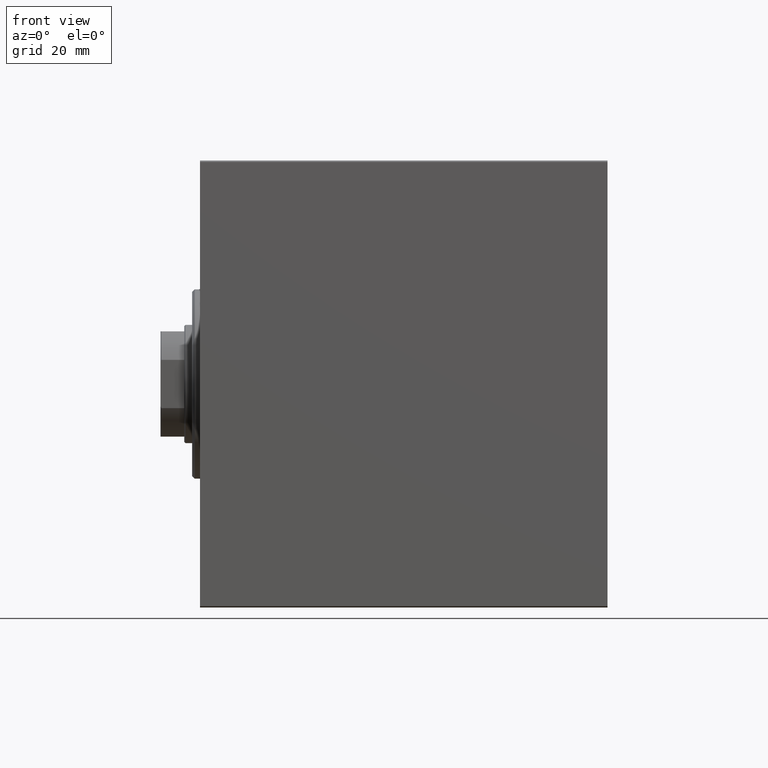
[diagram: clean part render]
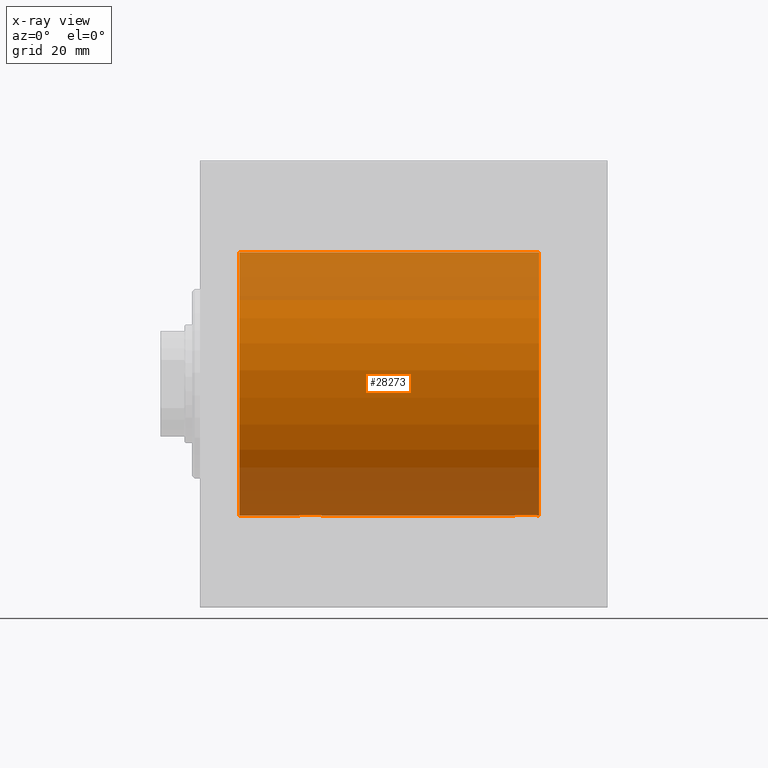
[diagram: x-ray — body ghosted, one internal face saturated and labeled with its STEP entity id]
A machine part, front view, then the same camera in x-ray: the body is ghosted and one INTERNAL B-rep face — a face not visible from any outside direction — is saturated and labeled: STEP entity #28273.
In plain terms, the highlighted cylindrical surface (partial cylindrical patch) has radius 50 mm, axis along (-1, -0, -0).
Its self-contained STEP definition (entity closure, byte-faithful):
#395 = B_SPLINE_CURVE_WITH_KNOTS ( 'NONE', 3,
 ( #21596, #35323, #42060, #21148, #22036, #31279, #18000, #14175, #700, #21811, #11024, #4507, #1354, #28349, #17548, #31724, #1134, #18216, #38690, #31503, #472, #35106, #24973, #25406, #15062, #14401, #41837, #42283, #42505, #11247, #24745, #31946, #7437, #8321 ),
 .UNSPECIFIED., .F., .F.,
 ( 4, 2, 2, 2, 2, 2, 2, 2, 2, 2, 2, 2, 2, 2, 2, 2, 4 ),
 ( 0.01329343152928756308, 0.01412407817529634686, 0.01495472482130513064, 0.01578537146731391269, 0.01661601811332269821, 0.01744666475933148025, 0.01827731140534026577, 0.01910795805134904782, 0.01993860469735782986, 0.02076925134336661538, 0.02159989798937540090, 0.02243054463538418294, 0.02326119128139296499, 0.02409183792740175051, 0.02492248457341053255, 0.02575313121941931460, 0.02658377786542810012 ),
 .UNSPECIFIED. ) ;
#472 = CARTESIAN_POINT ( 'NONE',  ( 40.63289352445426772, -4.033756670430848068, -49.83713703490974467 ) ) ;
#700 = CARTESIAN_POINT ( 'NONE',  ( 45.20303561951990901, -2.807099414226270184, -49.92152599098507437 ) ) ;
#987 = CARTESIAN_POINT ( 'NONE',  ( 120.1816075101212675, -1.886522330773437339, -49.96505190380065642 ) ) ;
#1134 = CARTESIAN_POINT ( 'NONE',  ( 42.28395287026698668, -4.249777379711400904, -49.81906655360197789 ) ) ;
#1202 = CARTESIAN_POINT ( 'NONE',  ( 125.1032329603421545, -4.113647494206490229, -49.83052139214891696 ) ) ;
#1277 = VERTEX_POINT ( 'NONE', #26521 ) ;
#1354 = CARTESIAN_POINT ( 'NONE',  ( 43.88744739392799943, -3.818052230167712668, -49.85412671291930309 ) ) ;
#1408 = VERTEX_POINT ( 'NONE', #11805 ) ;
#1915 = DIRECTION ( 'NONE',  ( -1.000000000000000000, -0.000000000000000000, -0.000000000000000000 ) ) ;
#2366 = VECTOR ( 'NONE', #1915, 1000.000000000000000 ) ;
#3307 = VECTOR ( 'NONE', #18392, 1000.000000000000000 ) ;
#3689 = CARTESIAN_POINT ( 'NONE',  ( 127.6893715567938585, -2.128188802142362945, -49.95522967821975158 ) ) ;
#3780 = ORIENTED_EDGE ( 'NONE', *, *, #25476, .F. ) ;
#4319 = VERTEX_POINT ( 'NONE', #17542 ) ;
#4363 = CARTESIAN_POINT ( 'NONE',  ( 125.3733343657903418, -4.031616700143195509, -49.83731072121799599 ) ) ;
#4507 = CARTESIAN_POINT ( 'NONE',  ( 44.13136399446156588, -3.687400765141522818, -49.86408552998298660 ) ) ;
#5023 = CARTESIAN_POINT ( 'NONE',  ( 124.2839528702669725, -4.249777379711414227, -49.81906655360197789 ) ) ;
#7212 = LINE ( 'NONE', #17536, #10577 ) ;
#7246 = ORIENTED_EDGE ( 'NONE', *, *, #41020, .F. ) ;
#7291 = CARTESIAN_POINT ( 'NONE',  ( 127.2030356195199232, -2.807099414226285727, -49.92152599098507437 ) ) ;
#7437 = CARTESIAN_POINT ( 'NONE',  ( 37.75000000000001421, -0.2808785465865695774, -50.00000000000001421 ) ) ;
#8029 = ORIENTED_EDGE ( 'NONE', *, *, #9341, .T. ) ;
#8170 = CARTESIAN_POINT ( 'NONE',  ( 122.9026238212096303, -4.115209769591122502, -49.83039196709102470 ) ) ;
#8321 = CARTESIAN_POINT ( 'NONE',  ( 37.75000000000000711, -7.073857814331912646E-15, -50.00000000000000000 ) ) ;
#8488 = CARTESIAN_POINT ( 'NONE',  ( 129.0000000000000000, 0.000000000000000000, 0.000000000000000000 ) ) ;
#8792 = ORIENTED_EDGE ( 'NONE', *, *, #25827, .T. ) ;
#9341 = EDGE_CURVE ( 'NONE', #34901, #28540, #32504, .T. ) ;
#9998 = CARTESIAN_POINT ( 'NONE',  ( 128.2231075279900381, -0.5531336717328986241, -49.99769193709643389 ) ) ;
#10255 = CARTESIAN_POINT ( 'NONE',  ( 46.25000000000000000, 6.123233970928580774E-15, -50.00000000000000000 ) ) ;
#10577 = VECTOR ( 'NONE', #41158, 1000.000000000000000 ) ;
#10802 = ORIENTED_EDGE ( 'NONE', *, *, #31514, .T. ) ;
#11024 = CARTESIAN_POINT ( 'NONE',  ( 44.59312720885956338, -3.378657745070617224, -49.88595615988430154 ) ) ;
#11096 = CARTESIAN_POINT ( 'NONE',  ( 122.6328935244542606, -4.033756670430865832, -49.83713703490974467 ) ) ;
#11247 = CARTESIAN_POINT ( 'NONE',  ( 37.96920203844656783, -1.375411031076042789, -49.98173289062309976 ) ) ;
#11805 = CARTESIAN_POINT ( 'NONE',  ( 15.00000000000000000, 0.000000000000000000, 50.00000000000000000 ) ) ;
#12056 = DIRECTION ( 'NONE',  ( -1.000000000000000000, 0.000000000000000000, 0.000000000000000000 ) ) ;
#12788 = AXIS2_PLACEMENT_3D ( 'NONE', #8488, #18822, #21320 ) ;
#13804 = CARTESIAN_POINT ( 'NONE',  ( 128.2500000000000000, -0.2773743941468452823, -50.00000000000000711 ) ) ;
#14175 = CARTESIAN_POINT ( 'NONE',  ( 45.37881717263736192, -2.593114840406122390, -49.93325460257641168 ) ) ;
#14401 = CARTESIAN_POINT ( 'NONE',  ( 38.80078072038717352, -2.811461347331107419, -49.92127983148852621 ) ) ;
#14689 = CARTESIAN_POINT ( 'NONE',  ( 123.4459143511985246, -4.222816005855221100, -49.82138837911247009 ) ) ;
#15062 = CARTESIAN_POINT ( 'NONE',  ( 39.19302168160691480, -3.203153387937319962, -49.89767833571684719 ) ) ;
#15128 = CARTESIAN_POINT ( 'NONE',  ( 120.6248001591803387, -2.597781786597479936, -49.93300953359122474 ) ) ;
#15464 = CIRCLE ( 'NONE', #33458, 50.00000000000000000 ) ;
#16391 = LINE ( 'NONE', #30129, #32800 ) ;
#17536 = CARTESIAN_POINT ( 'NONE',  ( 129.0000000000000000, 6.123233995736766085E-15, -50.00000000000000000 ) ) ;
#17542 = CARTESIAN_POINT ( 'NONE',  ( 15.00000000000000000, 6.123233995736766085E-15, -50.00000000000000000 ) ) ;
#17548 = CARTESIAN_POINT ( 'NONE',  ( 43.10323296034216156, -4.113647494206476907, -49.83052139214892406 ) ) ;
#17847 = CARTESIAN_POINT ( 'NONE',  ( 121.8736835512492149, -3.690299572754727642, -49.86386974736159772 ) ) ;
#18000 = CARTESIAN_POINT ( 'NONE',  ( 45.68937155679385853, -2.128188802142358949, -49.95522967821975158 ) ) ;
#18216 = CARTESIAN_POINT ( 'NONE',  ( 41.72275072962083442, -4.250219976861640880, -49.81902879621014080 ) ) ;
#18287 = CARTESIAN_POINT ( 'NONE',  ( 119.9692020384465678, -1.375411031076060997, -49.98173289062309976 ) ) ;
#18392 = DIRECTION ( 'NONE',  ( -1.000000000000000000, -0.000000000000000000, -0.000000000000000000 ) ) ;
#18726 = CARTESIAN_POINT ( 'NONE',  ( 125.8874473939280136, -3.818052230167727323, -49.85412671291929598 ) ) ;
#18822 = DIRECTION ( 'NONE',  ( -1.000000000000000000, -0.000000000000000000, -0.000000000000000000 ) ) ;
#18995 = CARTESIAN_POINT ( 'NONE',  ( 129.0000000000000000, 6.123233995736766085E-15, -50.00000000000000000 ) ) ;
#19910 = DIRECTION ( 'NONE',  ( 0.000000000000000000, 0.000000000000000000, 1.000000000000000000 ) ) ;
#19940 = B_SPLINE_CURVE_WITH_KNOTS ( 'NONE', 3,
 ( #40804, #13804, #9998, #27533, #34512, #24379, #3689, #38106, #7291, #21000, #34729, #29081, #18726, #4363, #1202, #31799, #5023, #38978, #14689, #8170, #11096, #21224, #17847, #35393, #24821, #25477, #15128, #25696, #987, #18287, #35609, #32455, #21885, #38548 ),
 .UNSPECIFIED., .F., .F.,
 ( 4, 2, 2, 2, 2, 2, 2, 2, 2, 2, 2, 2, 2, 2, 2, 2, 4 ),
 ( 0.01329343152928756308, 0.01412407817529634686, 0.01495472482130513238, 0.01578537146731391616, 0.01661601811332270168, 0.01744666475933148719, 0.01827731140534026924, 0.01910795805134905476, 0.01993860469735783680, 0.02076925134336662232, 0.02159989798937540784, 0.02243054463538419335, 0.02326119128139297540, 0.02409183792740176092, 0.02492248457341054296, 0.02575313121941932848, 0.02658377786542811400 ),
 .UNSPECIFIED. ) ;
#21000 = CARTESIAN_POINT ( 'NONE',  ( 126.8115306651541658, -3.199146701881681487, -49.89793607725462010 ) ) ;
#21148 = CARTESIAN_POINT ( 'NONE',  ( 46.11431913306007857, -1.101350136471736629, -49.98862054280448319 ) ) ;
#21224 = CARTESIAN_POINT ( 'NONE',  ( 122.1178295051555551, -3.820681512513399269, -49.85392475515401145 ) ) ;
#21320 = DIRECTION ( 'NONE',  ( 0.000000000000000000, 0.000000000000000000, 1.000000000000000000 ) ) ;
#21420 = CARTESIAN_POINT ( 'NONE',  ( 129.0000000000000000, 0.000000000000000000, 0.000000000000000000 ) ) ;
#21596 = CARTESIAN_POINT ( 'NONE',  ( 46.25000000000000000, 6.123233970928580774E-15, -50.00000000000000000 ) ) ;
#21811 = CARTESIAN_POINT ( 'NONE',  ( 44.81153066515419425, -3.199146701881665500, -49.89793607725460589 ) ) ;
#21885 = CARTESIAN_POINT ( 'NONE',  ( 119.7499999999999858, -0.2808785465865775155, -50.00000000000001421 ) ) ;
#21982 = CYLINDRICAL_SURFACE ( 'NONE', #12788, 50.00000000000000000 ) ;
#22036 = CARTESIAN_POINT ( 'NONE',  ( 46.03272642097311973, -1.369753890039645983, -49.98188917176553048 ) ) ;
#23449 = EDGE_CURVE ( 'NONE', #37289, #1277, #16391, .T. ) ;
#24341 = EDGE_LOOP ( 'NONE', ( #3780, #40173, #24382, #8029, #10802, #8792, #39513, #7246 ) ) ;
#24379 = CARTESIAN_POINT ( 'NONE',  ( 127.8210058198522603, -1.881229021238124632, -49.96525240872482954 ) ) ;
#24382 = ORIENTED_EDGE ( 'NONE', *, *, #42506, .T. ) ;
#24745 = CARTESIAN_POINT ( 'NONE',  ( 37.88750298919666903, -1.108337267831496886, -49.98846998601261760 ) ) ;
#24821 = CARTESIAN_POINT ( 'NONE',  ( 121.1930216816068935, -3.203153387937336394, -49.89767833571684719 ) ) ;
#24970 = VERTEX_POINT ( 'NONE', #37738 ) ;
#24973 = CARTESIAN_POINT ( 'NONE',  ( 39.87368355124922203, -3.690299572754720980, -49.86386974736159772 ) ) ;
#25406 = CARTESIAN_POINT ( 'NONE',  ( 39.41179785323799933, -3.382416624899781787, -49.88570010427956447 ) ) ;
#25476 = EDGE_CURVE ( 'NONE', #37289, #24970, #32835, .T. ) ;
#25477 = CARTESIAN_POINT ( 'NONE',  ( 120.8007807203871522, -2.811461347331123406, -49.92127983148851200 ) ) ;
#25586 = LINE ( 'NONE', #39532, #3307 ) ;
#25696 = CARTESIAN_POINT ( 'NONE',  ( 120.3139716787804758, -2.133925816755196880, -49.95498245321555686 ) ) ;
#25827 = EDGE_CURVE ( 'NONE', #39917, #4319, #7212, .T. ) ;
#25878 = CARTESIAN_POINT ( 'NONE',  ( 119.7499999999999858, -1.552464266337571260E-14, -50.00000000000000000 ) ) ;
#26521 = CARTESIAN_POINT ( 'NONE',  ( 128.2500000000000000, 6.123233970923453178E-15, -50.00000000000000000 ) ) ;
#27533 = CARTESIAN_POINT ( 'NONE',  ( 128.1143191330600359, -1.101350136471738850, -49.98862054280448319 ) ) ;
#28273 = ADVANCED_FACE ( 'NONE', ( #42670 ), #21982, .F. ) ;
#28349 = CARTESIAN_POINT ( 'NONE',  ( 43.37333436579036317, -4.031616700143180410, -49.83731072121798888 ) ) ;
#28536 = AXIS2_PLACEMENT_3D ( 'NONE', #21420, #31769, #41662 ) ;
#28540 = VERTEX_POINT ( 'NONE', #10255 ) ;
#29081 = CARTESIAN_POINT ( 'NONE',  ( 126.1313639944615659, -3.687400765141528591, -49.86408552998298660 ) ) ;
#30129 = CARTESIAN_POINT ( 'NONE',  ( 129.0000000000000000, 6.123233995736766085E-15, -50.00000000000000000 ) ) ;
#31279 = CARTESIAN_POINT ( 'NONE',  ( 45.82100581985226739, -1.881229021238118859, -49.96525240872482954 ) ) ;
#31503 = CARTESIAN_POINT ( 'NONE',  ( 40.90262382120964446, -4.115209769591110067, -49.83039196709102470 ) ) ;
#31514 = EDGE_CURVE ( 'NONE', #28540, #39917, #395, .T. ) ;
#31724 = CARTESIAN_POINT ( 'NONE',  ( 42.55997867695648296, -4.222042462213118519, -49.82145436824653473 ) ) ;
#31769 = DIRECTION ( 'NONE',  ( -1.000000000000000000, 0.000000000000000000, 0.000000000000000000 ) ) ;
#31799 = CARTESIAN_POINT ( 'NONE',  ( 124.5599786769564474, -4.222042462213132730, -49.82145436824653473 ) ) ;
#31946 = CARTESIAN_POINT ( 'NONE',  ( 37.77757364479220570, -0.5587117664567219366, -49.99763378604802000 ) ) ;
#32455 = CARTESIAN_POINT ( 'NONE',  ( 119.7775736447921986, -0.5587117664567315956, -49.99763378604802000 ) ) ;
#32504 = LINE ( 'NONE', #18995, #2366 ) ;
#32800 = VECTOR ( 'NONE', #43833, 1000.000000000000000 ) ;
#32835 = CIRCLE ( 'NONE', #28536, 50.00000000000000000 ) ;
#33458 = AXIS2_PLACEMENT_3D ( 'NONE', #40384, #12056, #19910 ) ;
#34512 = CARTESIAN_POINT ( 'NONE',  ( 128.0327264209731197, -1.369753890039650202, -49.98188917176553048 ) ) ;
#34621 = CARTESIAN_POINT ( 'NONE',  ( 129.0000000000000000, 6.123233995736766085E-15, -50.00000000000000000 ) ) ;
#34729 = CARTESIAN_POINT ( 'NONE',  ( 126.5931272088595705, -3.378657745070619445, -49.88595615988430154 ) ) ;
#34901 = VERTEX_POINT ( 'NONE', #25878 ) ;
#35106 = CARTESIAN_POINT ( 'NONE',  ( 40.11782950515556934, -3.820681512513381506, -49.85392475515401145 ) ) ;
#35323 = CARTESIAN_POINT ( 'NONE',  ( 46.25000000000000000, -0.2773743941468464480, -50.00000000000000711 ) ) ;
#35393 = CARTESIAN_POINT ( 'NONE',  ( 121.4117978532379709, -3.382416624899787561, -49.88570010427956447 ) ) ;
#35413 = CARTESIAN_POINT ( 'NONE',  ( 37.75000000000000711, -7.073857814331912646E-15, -50.00000000000000000 ) ) ;
#35609 = CARTESIAN_POINT ( 'NONE',  ( 119.8875029891966335, -1.108337267831507766, -49.98846998601261760 ) ) ;
#37289 = VERTEX_POINT ( 'NONE', #34621 ) ;
#37738 = CARTESIAN_POINT ( 'NONE',  ( 129.0000000000000000, 0.000000000000000000, 50.00000000000000000 ) ) ;
#38106 = CARTESIAN_POINT ( 'NONE',  ( 127.3788171726373548, -2.593114840406129940, -49.93325460257641168 ) ) ;
#38548 = CARTESIAN_POINT ( 'NONE',  ( 119.7499999999999858, -1.552464266337571260E-14, -50.00000000000000000 ) ) ;
#38690 = CARTESIAN_POINT ( 'NONE',  ( 41.44591435119853173, -4.222816005855206001, -49.82138837911246299 ) ) ;
#38978 = CARTESIAN_POINT ( 'NONE',  ( 123.7227507296208415, -4.250219976861655979, -49.81902879621013369 ) ) ;
#39513 = ORIENTED_EDGE ( 'NONE', *, *, #39706, .T. ) ;
#39532 = CARTESIAN_POINT ( 'NONE',  ( 129.0000000000000000, 0.000000000000000000, 50.00000000000000000 ) ) ;
#39706 = EDGE_CURVE ( 'NONE', #4319, #1408, #15464, .T. ) ;
#39917 = VERTEX_POINT ( 'NONE', #35413 ) ;
#40173 = ORIENTED_EDGE ( 'NONE', *, *, #23449, .T. ) ;
#40384 = CARTESIAN_POINT ( 'NONE',  ( 15.00000000000000000, 0.000000000000000000, 0.000000000000000000 ) ) ;
#40804 = CARTESIAN_POINT ( 'NONE',  ( 128.2500000000000000, 6.123233970923453178E-15, -50.00000000000000000 ) ) ;
#41020 = EDGE_CURVE ( 'NONE', #24970, #1408, #25586, .T. ) ;
#41158 = DIRECTION ( 'NONE',  ( -1.000000000000000000, -0.000000000000000000, -0.000000000000000000 ) ) ;
#41662 = DIRECTION ( 'NONE',  ( 0.000000000000000000, 0.000000000000000000, 1.000000000000000000 ) ) ;
#41837 = CARTESIAN_POINT ( 'NONE',  ( 38.62480015918034582, -2.597781786597465725, -49.93300953359122474 ) ) ;
#42060 = CARTESIAN_POINT ( 'NONE',  ( 46.22310752799000966, -0.5531336717328987351, -49.99769193709643389 ) ) ;
#42283 = CARTESIAN_POINT ( 'NONE',  ( 38.31397167878049714, -2.133925816755183114, -49.95498245321557818 ) ) ;
#42505 = CARTESIAN_POINT ( 'NONE',  ( 38.18160751012128884, -1.886522330773416911, -49.96505190380066352 ) ) ;
#42506 = EDGE_CURVE ( 'NONE', #1277, #34901, #19940, .T. ) ;
#42670 = FACE_OUTER_BOUND ( 'NONE', #24341, .T. ) ;
#43833 = DIRECTION ( 'NONE',  ( -1.000000000000000000, -0.000000000000000000, -0.000000000000000000 ) ) ;